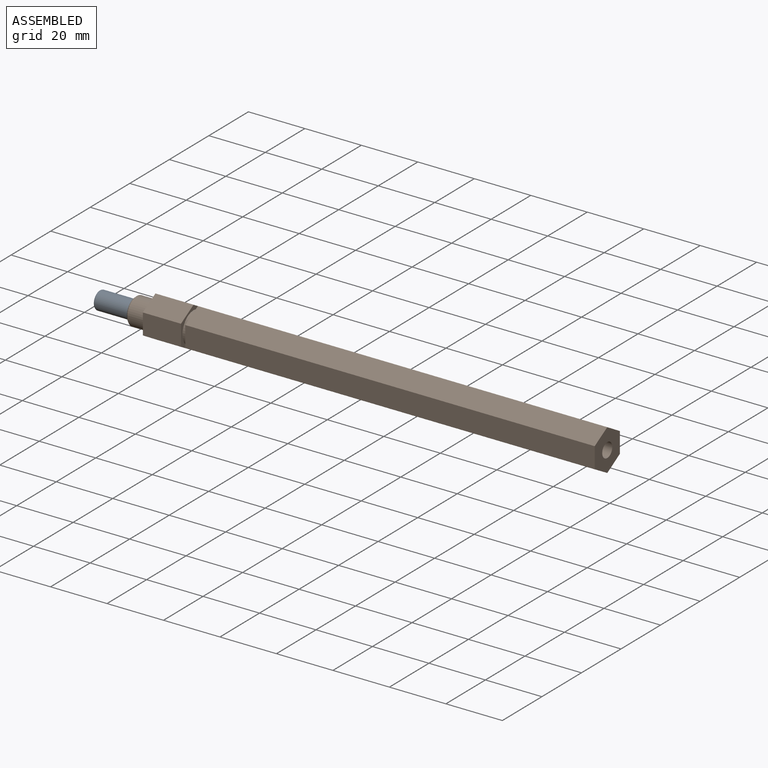
[diagram: assembled view]
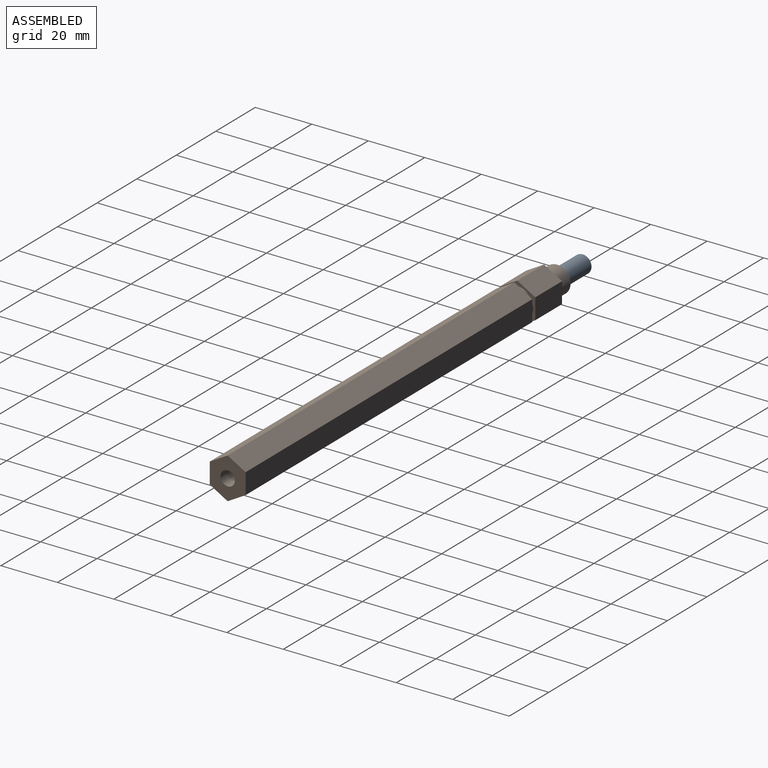
[diagram: assembled view, second angle]
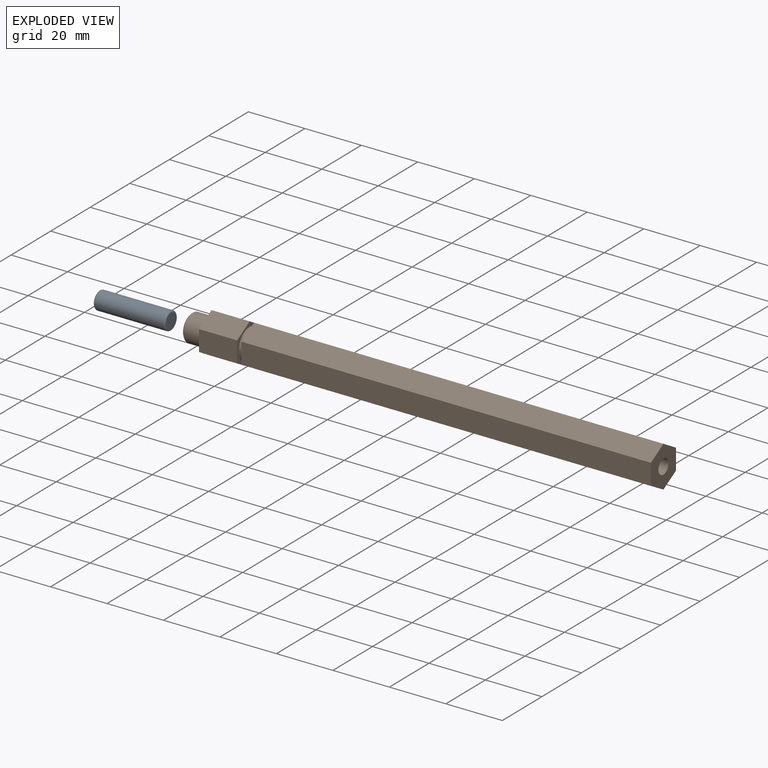
[diagram: exploded view]
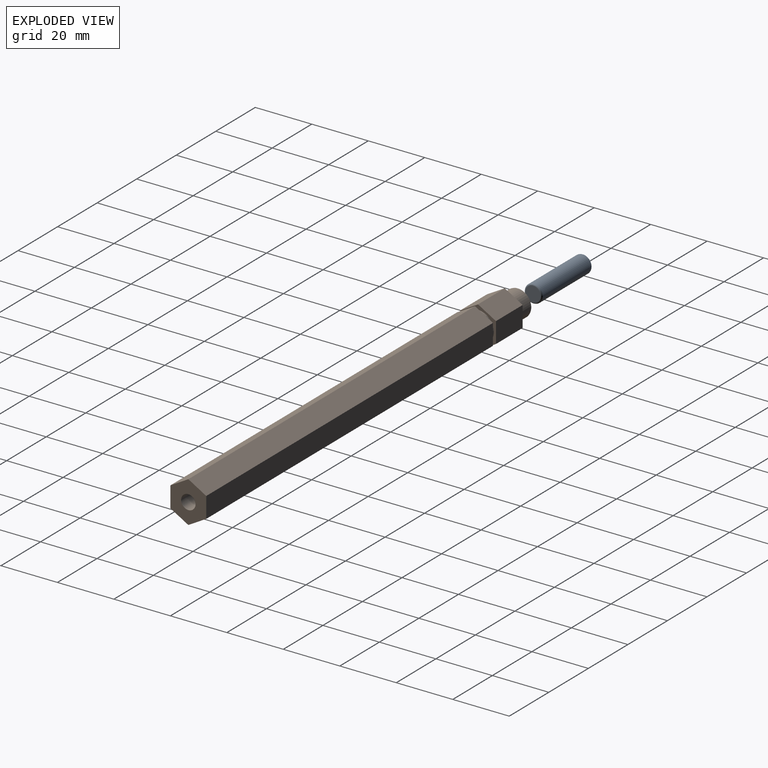
[diagram: exploded view, second angle]
ASSEMBLY  parts=2 mates=2
PART A: 5 faces, bbox 6.9x25.4x6.9 mm
  f0: cylinder r=3.17mm len=24.38mm, axis (0,-1,0), area 486.4mm2, adj f1,f2
  f1: torus R=2.67mm, axis (0,-1,0), area 15mm2, adj f0,f4
  f2: torus R=2.67mm, axis (0,-1,0), area 15mm2, adj f0,f3
  f3: plane 5.33x5.33mm, normal (0,1,0), area 22.3mm2, adj f2
  f4: plane 5.33x5.33mm, normal (0,-1,0), area 22.3mm2, adj f1
PART B: 24 faces, bbox 167.1x12.7x14.7 mm
  f0: cone r=4.76mm half-angle=45deg, axis (1,0,0), area 20.4mm2, adj f6,f8
  f1: cylinder r=3.19mm len=12.7mm, axis (-1,0,0), area 254.4mm2, adj f2,f8
  f2: cone r=3.19mm half-angle=59deg, axis (-1,0,0), area 37.2mm2, adj f1
  f3: cylinder r=2.55mm len=16mm, axis (1,0,0), area 256.7mm2, adj f4,f23
  f4: cone r=2.55mm half-angle=59deg, axis (1,0,0), area 23.9mm2, adj f3
  f5: cylinder r=5.59mm len=11.18mm, axis (-1,0,0), area 53.5mm2, adj f7,f16
  f6: cylinder r=4.76mm len=9.53mm, axis (-1,0,0), area 197.6mm2, adj f0,f9
  f7: plane 14.66x12.7mm, normal (1,0,0), area 41.6mm2, adj f5,f10,f11,f12,f13,f14,f15
  f8: plane 8.51x8.51mm, normal (-1,0,0), area 24.9mm2, adj f0,f1
  f9: plane 14.66x12.7mm, normal (-1,0,0), area 68.4mm2, adj f6,f10,f11,f12,f13,f14,f15
  f10: plane 13.51x6.35mm, normal (0,-0.5,-0.87), area 99.1mm2, adj f7,f9,f11,f15
  f11: plane 13.51x6.35mm, normal (0,0.5,-0.87), area 99.1mm2, adj f7,f9,f10,f12
  f12: plane 13.51x7.33mm, normal (0,1,0), area 99.1mm2, adj f7,f9,f11,f13
  f13: plane 13.51x6.35mm, normal (0,0.5,0.87), area 99.1mm2, adj f7,f9,f12,f14
  f14: plane 13.51x6.35mm, normal (0,-0.5,0.87), area 99.1mm2, adj f7,f9,f13,f15
  f15: plane 13.51x7.33mm, normal (0,-1,0), area 99.1mm2, adj f7,f9,f10,f14
  f16: plane 14.66x12.7mm, normal (-1,0,0), area 41.6mm2, adj f5,f17,f18,f19,f20,f21,f22
  f17: plane 144.98x6.35mm, normal (0,-0.5,-0.87), area 1063.1mm2, adj f16,f18,f22,f23
  f18: plane 144.98x6.35mm, normal (0,0.5,-0.87), area 1063.1mm2, adj f16,f17,f19,f23
  f19: plane 144.98x7.33mm, normal (0,1,0), area 1063.1mm2, adj f16,f18,f20,f23
  f20: plane 144.98x6.35mm, normal (0,0.5,0.87), area 1063.1mm2, adj f16,f19,f21,f23
  f21: plane 144.98x6.35mm, normal (0,-0.5,0.87), area 1063.1mm2, adj f16,f20,f22,f23
  f22: plane 144.98x7.33mm, normal (0,-1,0), area 1063.1mm2, adj f16,f17,f21,f23
  f23: plane 14.66x12.7mm, normal (1,0,0), area 119.2mm2, adj f3,f17,f18,f19,f20,f21,f22
PLACE A rot(axis=(0,0,1),90deg) t=(-103.61,-8.14,21.41)mm
PLACE B t=(-116.31,-8.14,21.41)mm
MATE planar B.f0 <-> A.f0  axis (-1,0,0) through (-103.61,-8.14,21.41)mm
MATE cylindrical A.f0 <-> B.f0  axis (-1,0,0) through (-129.01,-8.14,21.41)mm
